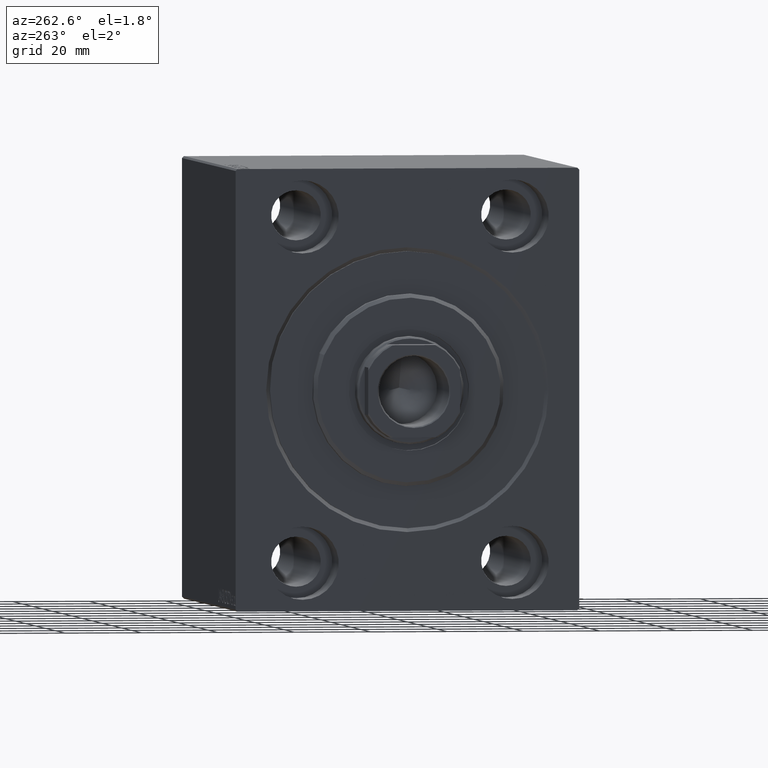
[diagram: clean part render]
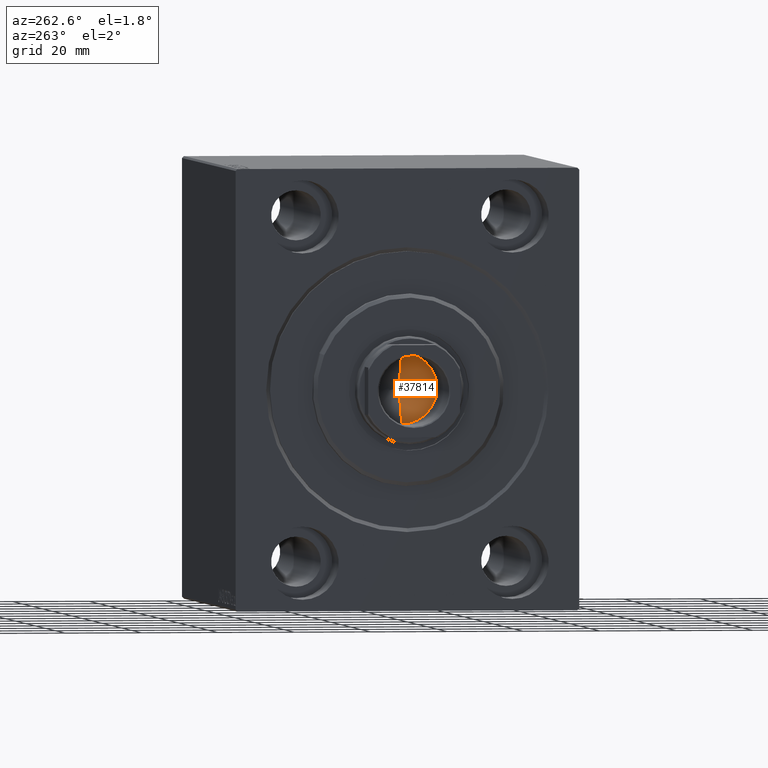
[diagram: same view with one face highlighted and labeled with its STEP entity id]
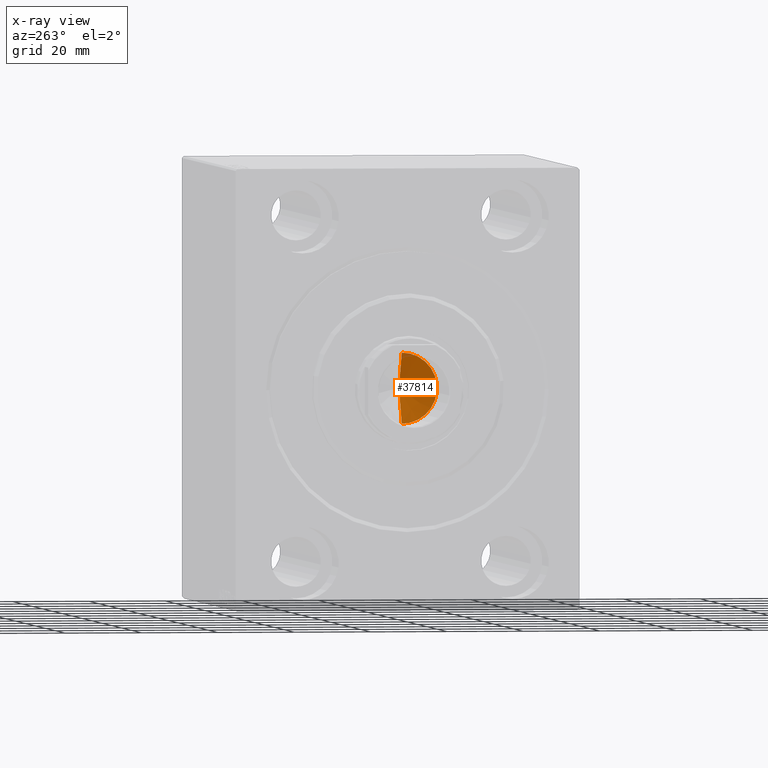
[diagram: x-ray of the same camera — body ghosted, the highlighted face saturated]
A machine part, auxiliary view. The second image highlights one B-rep face of the part: STEP entity #37814.
The next image is the same camera in x-ray: the body ghosted, the highlighted face saturated — about 2% of this face is hidden behind the body in this view.
In plain terms, the highlighted conical surface has half-angle 59 deg.
Its self-contained STEP definition (entity closure, byte-faithful):
#1 = AXIS2_PLACEMENT_3D ( 'NONE', #16630, #26607, #15810 ) ;
#1053 = EDGE_CURVE ( 'NONE', #25711, #27796, #20958, .T. ) ;
#3539 = CIRCLE ( 'NONE', #1, 9.249999999999994671 ) ;
#3603 = DIRECTION ( 'NONE',  ( 1.000000000000000000, 0.000000000000000000, 0.000000000000000000 ) ) ;
#4342 = CARTESIAN_POINT ( 'NONE',  ( 9.249999999999994671, 0.000000000000000000, 79.00000000000001421 ) ) ;
#6089 = CARTESIAN_POINT ( 'NONE',  ( -6.793016015247754405E-15, 0.000000000000000000, 73.44203927399506426 ) ) ;
#7801 = CARTESIAN_POINT ( 'NONE',  ( 0.000000000000000000, 0.000000000000000000, 79.00000000000001421 ) ) ;
#10952 = EDGE_CURVE ( 'NONE', #25711, #31931, #42466, .T. ) ;
#13017 = ORIENTED_EDGE ( 'NONE', *, *, #32410, .T. ) ;
#14017 = DIRECTION ( 'NONE',  ( -0.000000000000000000, -0.000000000000000000, 1.000000000000000000 ) ) ;
#14984 = CARTESIAN_POINT ( 'NONE',  ( 9.249999999999994671, 0.000000000000000000, 79.00000000000001421 ) ) ;
#15810 = DIRECTION ( 'NONE',  ( 1.000000000000000000, 0.000000000000000000, 0.000000000000000000 ) ) ;
#16630 = CARTESIAN_POINT ( 'NONE',  ( 0.000000000000000000, 0.000000000000000000, 79.00000000000001421 ) ) ;
#19492 = EDGE_LOOP ( 'NONE', ( #32962, #25987, #13017 ) ) ;
#20958 = LINE ( 'NONE', #4342, #28443 ) ;
#24197 = FACE_OUTER_BOUND ( 'NONE', #19492, .T. ) ;
#25192 = AXIS2_PLACEMENT_3D ( 'NONE', #7801, #14017, #3603 ) ;
#25711 = VERTEX_POINT ( 'NONE', #6089 ) ;
#25987 = ORIENTED_EDGE ( 'NONE', *, *, #10952, .T. ) ;
#26607 = DIRECTION ( 'NONE',  ( -0.000000000000000000, -0.000000000000000000, 1.000000000000000000 ) ) ;
#27796 = VERTEX_POINT ( 'NONE', #14984 ) ;
#28443 = VECTOR ( 'NONE', #34465, 1000.000000000000000 ) ;
#31931 = VERTEX_POINT ( 'NONE', #35631 ) ;
#32253 = DIRECTION ( 'NONE',  ( -0.8571673007021113344, 1.049727191138617463E-16, 0.5150380749100558209 ) ) ;
#32410 = EDGE_CURVE ( 'NONE', #31931, #27796, #3539, .T. ) ;
#32962 = ORIENTED_EDGE ( 'NONE', *, *, #1053, .F. ) ;
#34465 = DIRECTION ( 'NONE',  ( 0.8571673007021113344, 0.000000000000000000, 0.5150380749100558209 ) ) ;
#35631 = CARTESIAN_POINT ( 'NONE',  ( -9.249999999999994671, 1.132798289211300909E-15, 79.00000000000001421 ) ) ;
#35784 = CONICAL_SURFACE ( 'NONE', #25192, 9.249999999999994671, 1.029744258676652535 ) ;
#37814 = ADVANCED_FACE ( 'NONE', ( #24197 ), #35784, .F. ) ;
#38474 = CARTESIAN_POINT ( 'NONE',  ( -9.249999999999994671, 1.132798289211300909E-15, 79.00000000000001421 ) ) ;
#42466 = LINE ( 'NONE', #38474, #42725 ) ;
#42725 = VECTOR ( 'NONE', #32253, 1000.000000000000000 ) ;